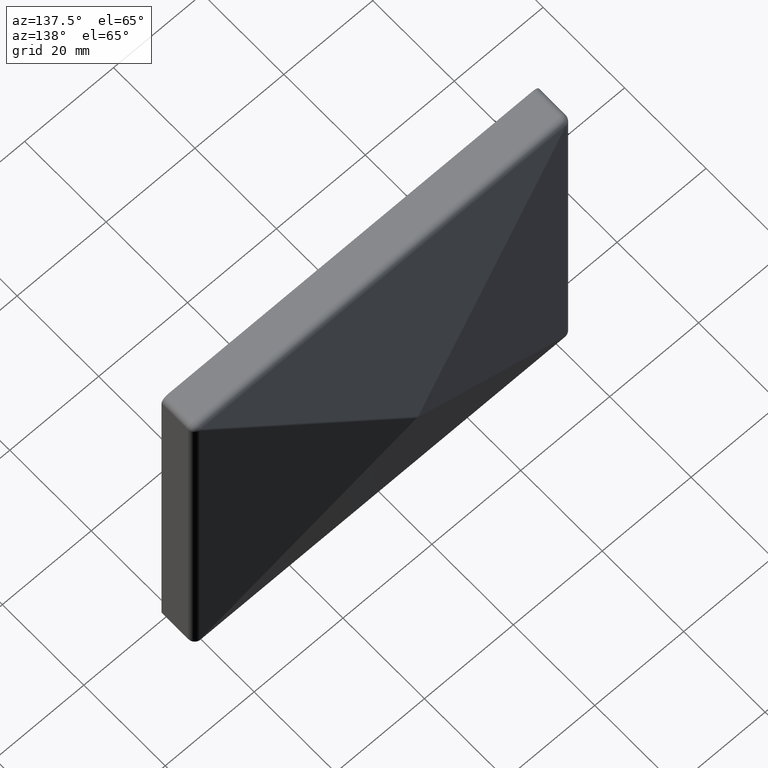
[diagram: clean part render]
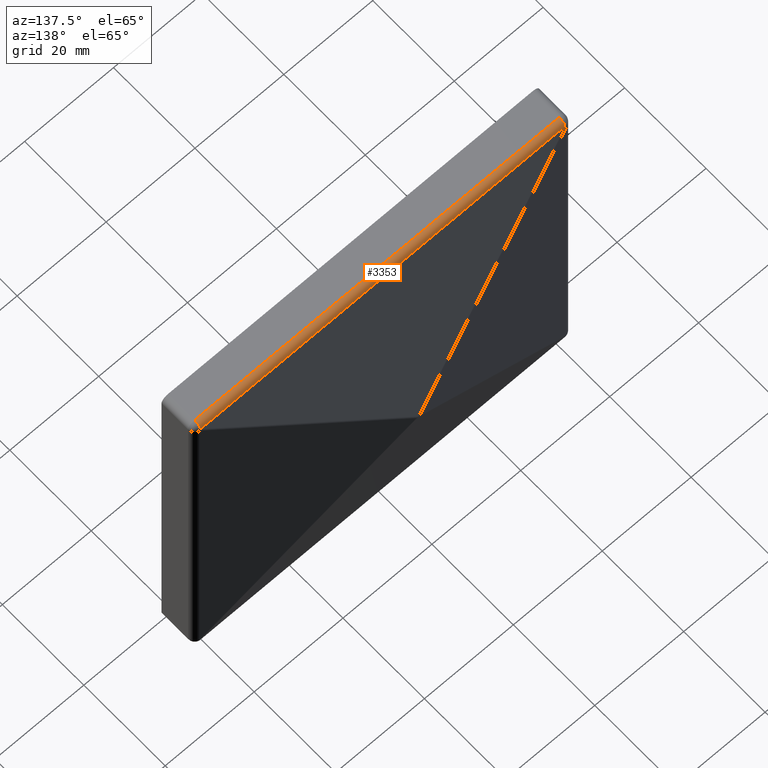
[diagram: same view with one face highlighted and labeled with its STEP entity id]
A machine part, auxiliary view. The second image highlights one B-rep face of the part: STEP entity #3353.
In plain terms, the highlighted cylindrical surface (edge-blend (fillet) strip) has radius 1.5 mm, axis along (-1, -0, 0).
Its self-contained STEP definition (entity closure, byte-faithful):
#660 = DIRECTION ( 'NONE',  ( -1.000000000000000000, -0.0000000000000000000, 2.220446049250313100E-016 ) ) ;
#798 = DIRECTION ( 'NONE',  ( 0.0000000000000000000, 0.0000000000000000000, 1.000000000000000000 ) ) ;
#850 = AXIS2_PLACEMENT_3D ( 'NONE', #10890, #4647, #2023 ) ;
#1198 = ORIENTED_EDGE ( 'NONE', *, *, #2448, .F. ) ;
#1384 = ORIENTED_EDGE ( 'NONE', *, *, #5648, .T. ) ;
#1696 = CARTESIAN_POINT ( 'NONE',  ( 42.50000000000002800, 6.500000000000000000, 42.50000000000000000 ) ) ;
#1991 = FACE_OUTER_BOUND ( 'NONE', #3690, .T. ) ;
#2023 = DIRECTION ( 'NONE',  ( 0.0000000000000000000, 0.0000000000000000000, 1.000000000000000000 ) ) ;
#2236 = CARTESIAN_POINT ( 'NONE',  ( -41.00000000000000000, 6.500000000000000000, 42.50000000000002100 ) ) ;
#2448 = EDGE_CURVE ( 'NONE', #4110, #7817, #2567, .T. ) ;
#2547 = DIRECTION ( 'NONE',  ( 1.000000000000000000, 0.0000000000000000000, -2.220446049250313100E-016 ) ) ;
#2567 = LINE ( 'NONE', #1696, #10639 ) ;
#2637 = VERTEX_POINT ( 'NONE', #4536 ) ;
#2745 = DIRECTION ( 'NONE',  ( -1.000000000000000000, -0.0000000000000000000, 2.220446049250313100E-016 ) ) ;
#3128 = CARTESIAN_POINT ( 'NONE',  ( 42.50000000000002800, 7.968767966144275400, 41.30450067590796700 ) ) ;
#3221 = AXIS2_PLACEMENT_3D ( 'NONE', #7828, #2547, #798 ) ;
#3353 = ADVANCED_FACE ( 'NONE', ( #1991 ), #5731, .T. ) ;
#3529 = ORIENTED_EDGE ( 'NONE', *, *, #5768, .T. ) ;
#3562 = ORIENTED_EDGE ( 'NONE', *, *, #4512, .T. ) ;
#3690 = EDGE_LOOP ( 'NONE', ( #1198, #1384, #3562, #3529 ) ) ;
#4110 = VERTEX_POINT ( 'NONE', #7741 ) ;
#4512 = EDGE_CURVE ( 'NONE', #2637, #9301, #8077, .T. ) ;
#4536 = CARTESIAN_POINT ( 'NONE',  ( 41.00000000000001400, 7.968767966144275400, 41.30450067590796700 ) ) ;
#4647 = DIRECTION ( 'NONE',  ( -1.000000000000000000, -0.0000000000000000000, 2.220446049250313100E-016 ) ) ;
#5518 = CARTESIAN_POINT ( 'NONE',  ( -41.00000000000001400, 7.968767966144275400, 41.30450067590798800 ) ) ;
#5648 = EDGE_CURVE ( 'NONE', #4110, #2637, #11268, .T. ) ;
#5731 = CYLINDRICAL_SURFACE ( 'NONE', #6823, 1.500000000000001300 ) ;
#5768 = EDGE_CURVE ( 'NONE', #9301, #7817, #9725, .T. ) ;
#6390 = CARTESIAN_POINT ( 'NONE',  ( 42.50000000000002800, 6.500000000000000000, 41.00000000000000000 ) ) ;
#6823 = AXIS2_PLACEMENT_3D ( 'NONE', #6390, #2745, #10803 ) ;
#7741 = CARTESIAN_POINT ( 'NONE',  ( 41.00000000000000000, 6.500000000000000000, 42.50000000000000000 ) ) ;
#7817 = VERTEX_POINT ( 'NONE', #2236 ) ;
#7828 = CARTESIAN_POINT ( 'NONE',  ( -41.00000000000001400, 6.500000000000000000, 41.00000000000002100 ) ) ;
#8077 = LINE ( 'NONE', #3128, #8498 ) ;
#8271 = DIRECTION ( 'NONE',  ( -1.000000000000000000, -0.0000000000000000000, 2.220446049250313100E-016 ) ) ;
#8498 = VECTOR ( 'NONE', #8271, 1000.000000000000000 ) ;
#9301 = VERTEX_POINT ( 'NONE', #5518 ) ;
#9725 = CIRCLE ( 'NONE', #3221, 1.500000000000001300 ) ;
#10639 = VECTOR ( 'NONE', #660, 1000.000000000000000 ) ;
#10803 = DIRECTION ( 'NONE',  ( 0.0000000000000000000, 0.0000000000000000000, 1.000000000000000000 ) ) ;
#10890 = CARTESIAN_POINT ( 'NONE',  ( 41.00000000000000700, 6.500000000000000000, 41.00000000000000000 ) ) ;
#11268 = CIRCLE ( 'NONE', #850, 1.500000000000001300 ) ;